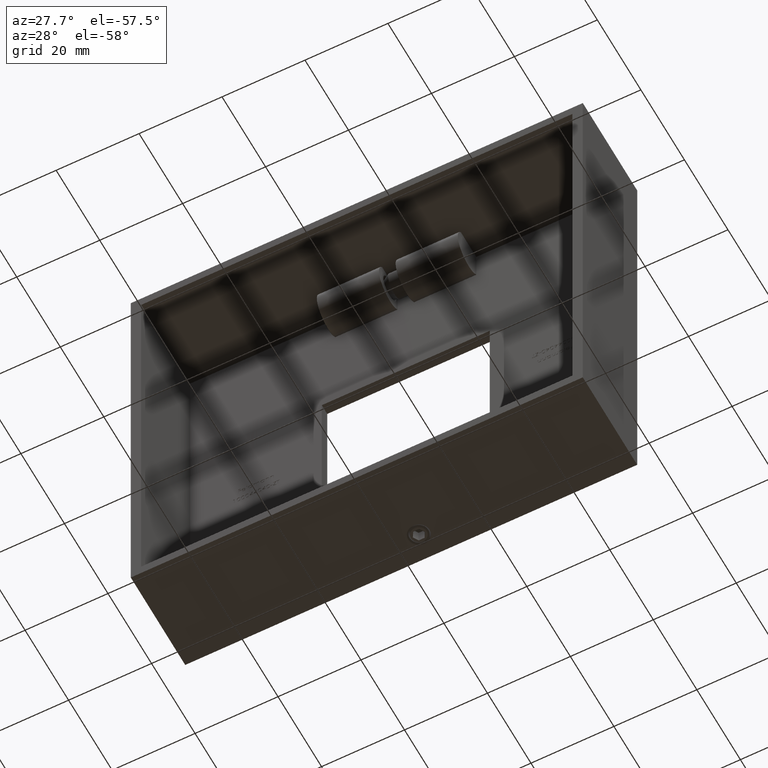
[diagram: clean part render]
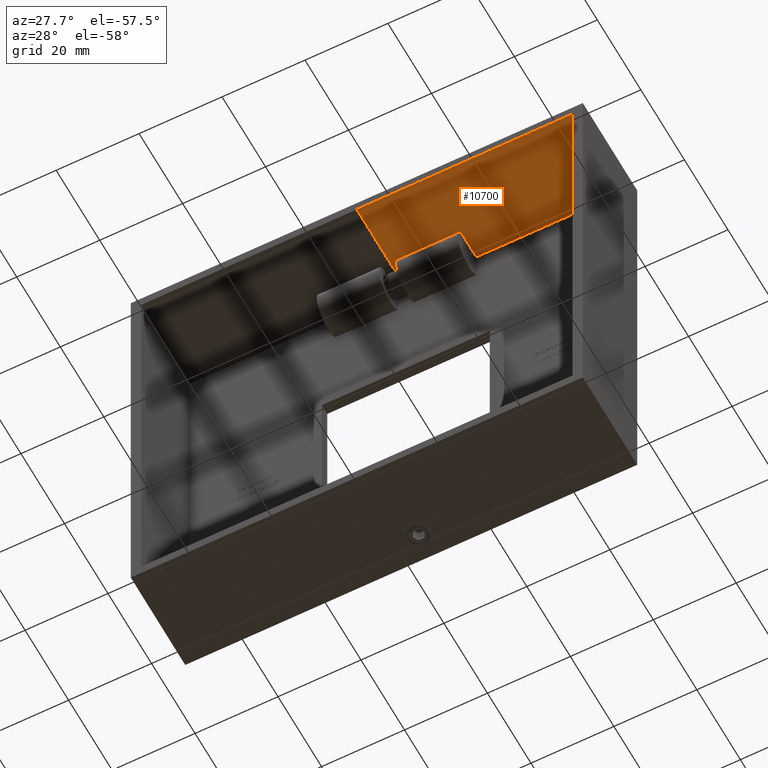
[diagram: same view with one face highlighted and labeled with its STEP entity id]
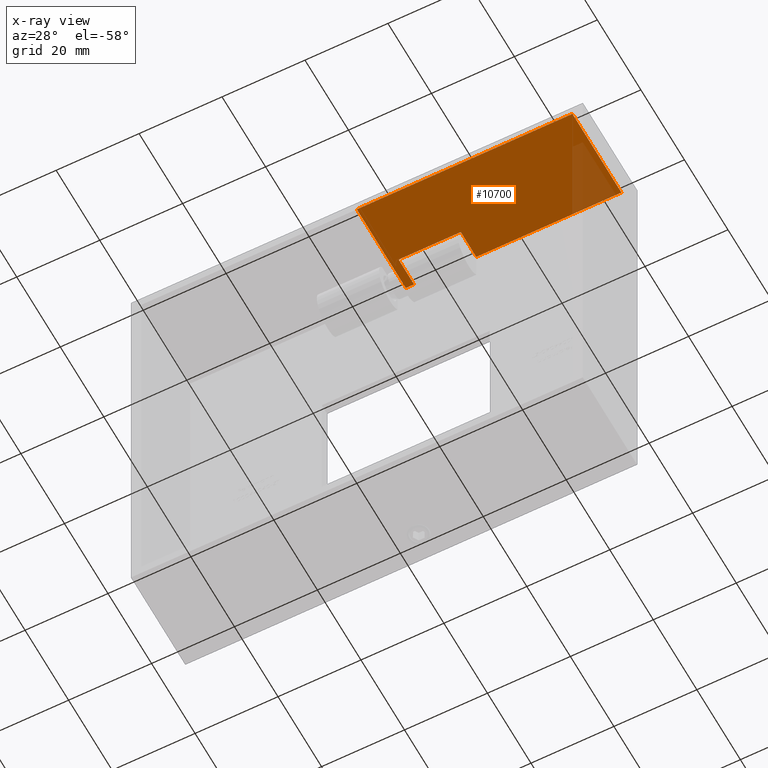
[diagram: x-ray of the same camera — body ghosted, the highlighted face saturated]
A machine part, auxiliary view. The second image highlights one B-rep face of the part: STEP entity #10700.
The next image is the same camera in x-ray: the body ghosted, the highlighted face saturated — about 9% of this face is hidden behind the body in this view.
In plain terms, the highlighted planar face has unit normal (-0, 0, 1).
Its self-contained STEP definition (entity closure, byte-faithful):
#82 = VERTEX_POINT ( 'NONE', #2763 ) ;
#105 = VECTOR ( 'NONE', #189, 1000.000000000000000 ) ;
#189 = DIRECTION ( 'NONE',  ( 0.0000000000000000000, -1.000000000000000000, 0.0000000000000000000 ) ) ;
#353 = DIRECTION ( 'NONE',  ( 1.000000000000000000, -0.0000000000000000000, 0.0000000000000000000 ) ) ;
#373 = CARTESIAN_POINT ( 'NONE',  ( 10.25000000000000900, 15.42928578572857400, -52.00000000000000000 ) ) ;
#374 = EDGE_CURVE ( 'NONE', #8021, #13475, #5010, .T. ) ;
#425 = DIRECTION ( 'NONE',  ( 1.000000000000000000, 0.0000000000000000000, 1.273191542001326800E-016 ) ) ;
#610 = ORIENTED_EDGE ( 'NONE', *, *, #7060, .F. ) ;
#746 = LINE ( 'NONE', #373, #15564 ) ;
#861 = VERTEX_POINT ( 'NONE', #8419 ) ;
#1227 = ORIENTED_EDGE ( 'NONE', *, *, #7276, .T. ) ;
#1693 = CARTESIAN_POINT ( 'NONE',  ( 10.25000000000000900, 22.50000000000000700, -52.00000000000000700 ) ) ;
#1744 = LINE ( 'NONE', #5972, #12826 ) ;
#1786 = LINE ( 'NONE', #15548, #5899 ) ;
#1987 = VERTEX_POINT ( 'NONE', #11673 ) ;
#2057 = EDGE_CURVE ( 'NONE', #3991, #8021, #1786, .T. ) ;
#2763 = CARTESIAN_POINT ( 'NONE',  ( -24.74999999999999300, 0.0000000000000000000, -52.00000000000000700 ) ) ;
#3685 = DIRECTION ( 'NONE',  ( 0.0000000000000000000, 0.0000000000000000000, -1.000000000000000000 ) ) ;
#3991 = VERTEX_POINT ( 'NONE', #4295 ) ;
#4119 = CARTESIAN_POINT ( 'NONE',  ( 10.25000000000000900, 15.42928578572858100, -52.00000000000000700 ) ) ;
#4295 = CARTESIAN_POINT ( 'NONE',  ( -24.74999999999999300, 22.50000000000000700, -52.00000000000000700 ) ) ;
#4936 = PLANE ( 'NONE',  #7966 ) ;
#5010 = LINE ( 'NONE', #15541, #13664 ) ;
#5581 = LINE ( 'NONE', #12694, #7648 ) ;
#5899 = VECTOR ( 'NONE', #15454, 1000.000000000000000 ) ;
#5972 = CARTESIAN_POINT ( 'NONE',  ( 0.0000000000000000000, 0.0000000000000000000, -52.00000000000000700 ) ) ;
#7060 = EDGE_CURVE ( 'NONE', #861, #13096, #5581, .T. ) ;
#7276 = EDGE_CURVE ( 'NONE', #82, #13096, #1744, .T. ) ;
#7601 = VERTEX_POINT ( 'NONE', #11416 ) ;
#7648 = VECTOR ( 'NONE', #13878, 1000.000000000000000 ) ;
#7966 = AXIS2_PLACEMENT_3D ( 'NONE', #10880, #3685, #8429 ) ;
#8021 = VERTEX_POINT ( 'NONE', #1693 ) ;
#8419 = CARTESIAN_POINT ( 'NONE',  ( 27.24999999999999300, 22.50000000000000700, -52.00000000000000700 ) ) ;
#8429 = DIRECTION ( 'NONE',  ( -1.000000000000000000, 0.0000000000000000000, -0.0000000000000000000 ) ) ;
#8670 = CARTESIAN_POINT ( 'NONE',  ( 25.25000000000000700, 22.50000000000000700, -52.00000000000000000 ) ) ;
#9752 = ORIENTED_EDGE ( 'NONE', *, *, #2057, .F. ) ;
#9855 = EDGE_LOOP ( 'NONE', ( #12207, #12660, #9752, #11827, #1227, #610, #10333, #10984 ) ) ;
#10333 = ORIENTED_EDGE ( 'NONE', *, *, #10695, .F. ) ;
#10438 = CARTESIAN_POINT ( 'NONE',  ( 27.24999999999999300, 0.0000000000000000000, -52.00000000000000700 ) ) ;
#10608 = VECTOR ( 'NONE', #12108, 1000.000000000000000 ) ;
#10677 = DIRECTION ( 'NONE',  ( 0.0000000000000000000, -1.000000000000000000, 0.0000000000000000000 ) ) ;
#10695 = EDGE_CURVE ( 'NONE', #1987, #861, #14957, .T. ) ;
#10700 = ADVANCED_FACE ( 'NONE', ( #11587 ), #4936, .F. ) ;
#10880 = CARTESIAN_POINT ( 'NONE',  ( 0.0000000000000000000, 141.2755348299890600, -52.00000000000000700 ) ) ;
#10984 = ORIENTED_EDGE ( 'NONE', *, *, #11115, .T. ) ;
#11115 = EDGE_CURVE ( 'NONE', #1987, #7601, #15142, .T. ) ;
#11373 = VECTOR ( 'NONE', #353, 1000.000000000000000 ) ;
#11416 = CARTESIAN_POINT ( 'NONE',  ( 25.25000000000000700, 15.42928578572858100, -52.00000000000000700 ) ) ;
#11587 = FACE_OUTER_BOUND ( 'NONE', #9855, .T. ) ;
#11673 = CARTESIAN_POINT ( 'NONE',  ( 25.25000000000000700, 22.50000000000000700, -52.00000000000000000 ) ) ;
#11827 = ORIENTED_EDGE ( 'NONE', *, *, #12759, .T. ) ;
#12108 = DIRECTION ( 'NONE',  ( -0.0000000000000000000, -1.000000000000000000, -0.0000000000000000000 ) ) ;
#12207 = ORIENTED_EDGE ( 'NONE', *, *, #15212, .F. ) ;
#12318 = CARTESIAN_POINT ( 'NONE',  ( 0.0000000000000000000, 22.50000000000000700, -52.00000000000000700 ) ) ;
#12660 = ORIENTED_EDGE ( 'NONE', *, *, #374, .F. ) ;
#12694 = CARTESIAN_POINT ( 'NONE',  ( 27.24999999999999300, 141.2755348299890600, -52.00000000000000700 ) ) ;
#12759 = EDGE_CURVE ( 'NONE', #3991, #82, #13791, .T. ) ;
#12826 = VECTOR ( 'NONE', #14375, 1000.000000000000000 ) ;
#13096 = VERTEX_POINT ( 'NONE', #10438 ) ;
#13273 = CARTESIAN_POINT ( 'NONE',  ( -24.74999999999999300, 141.2755348299890600, -52.00000000000000700 ) ) ;
#13475 = VERTEX_POINT ( 'NONE', #4119 ) ;
#13664 = VECTOR ( 'NONE', #10677, 1000.000000000000000 ) ;
#13791 = LINE ( 'NONE', #13273, #10608 ) ;
#13878 = DIRECTION ( 'NONE',  ( -0.0000000000000000000, -1.000000000000000000, -0.0000000000000000000 ) ) ;
#14375 = DIRECTION ( 'NONE',  ( 1.000000000000000000, 0.0000000000000000000, 0.0000000000000000000 ) ) ;
#14957 = LINE ( 'NONE', #12318, #11373 ) ;
#15142 = LINE ( 'NONE', #8670, #105 ) ;
#15212 = EDGE_CURVE ( 'NONE', #13475, #7601, #746, .T. ) ;
#15454 = DIRECTION ( 'NONE',  ( 1.000000000000000000, -0.0000000000000000000, 0.0000000000000000000 ) ) ;
#15541 = CARTESIAN_POINT ( 'NONE',  ( 10.25000000000000900, 22.50000000000000700, -52.00000000000000000 ) ) ;
#15548 = CARTESIAN_POINT ( 'NONE',  ( 0.0000000000000000000, 22.50000000000000700, -52.00000000000000700 ) ) ;
#15564 = VECTOR ( 'NONE', #425, 1000.000000000000000 ) ;